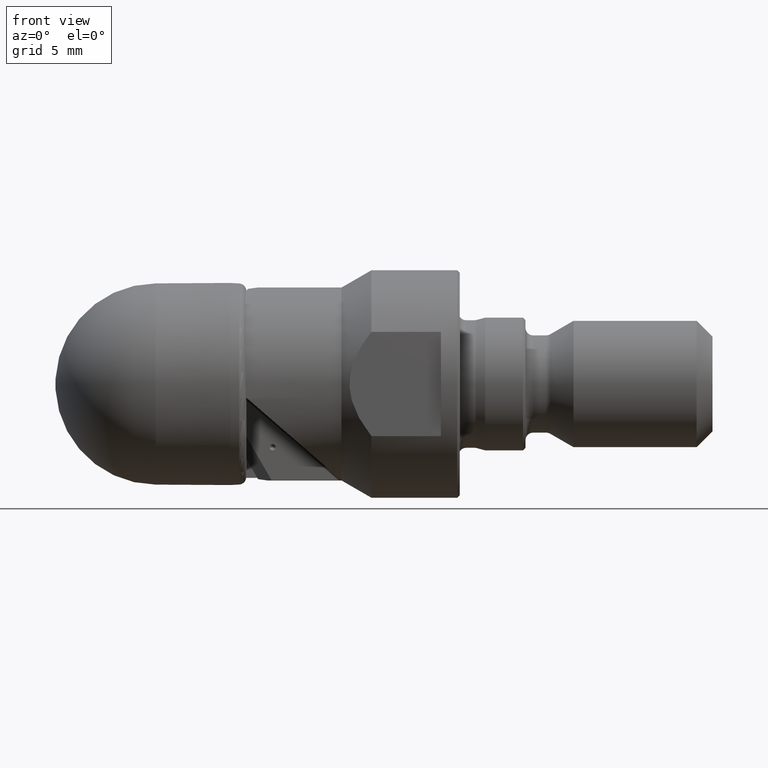
[diagram: clean part render]
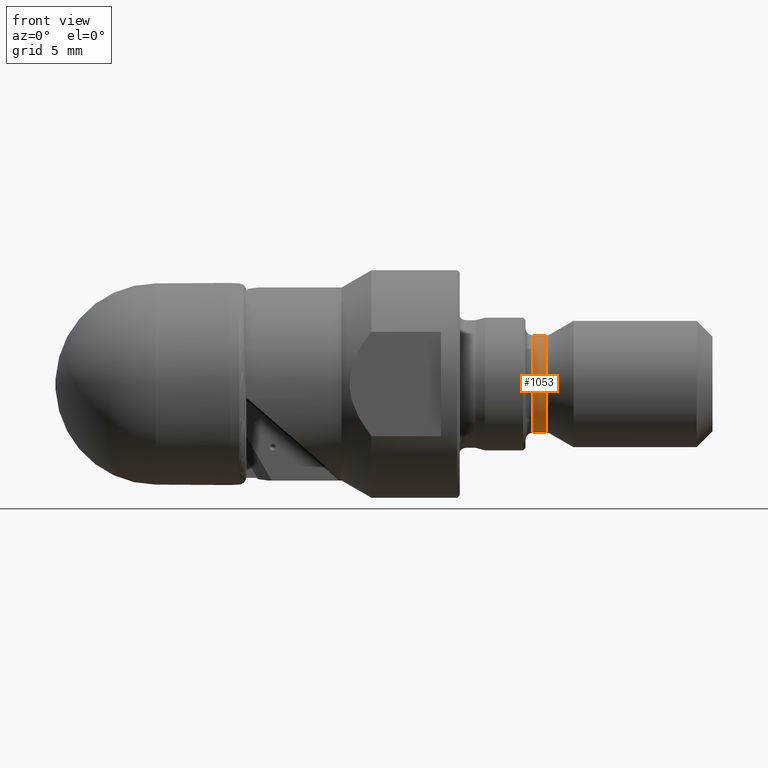
[diagram: same view with one face highlighted and labeled with its STEP entity id]
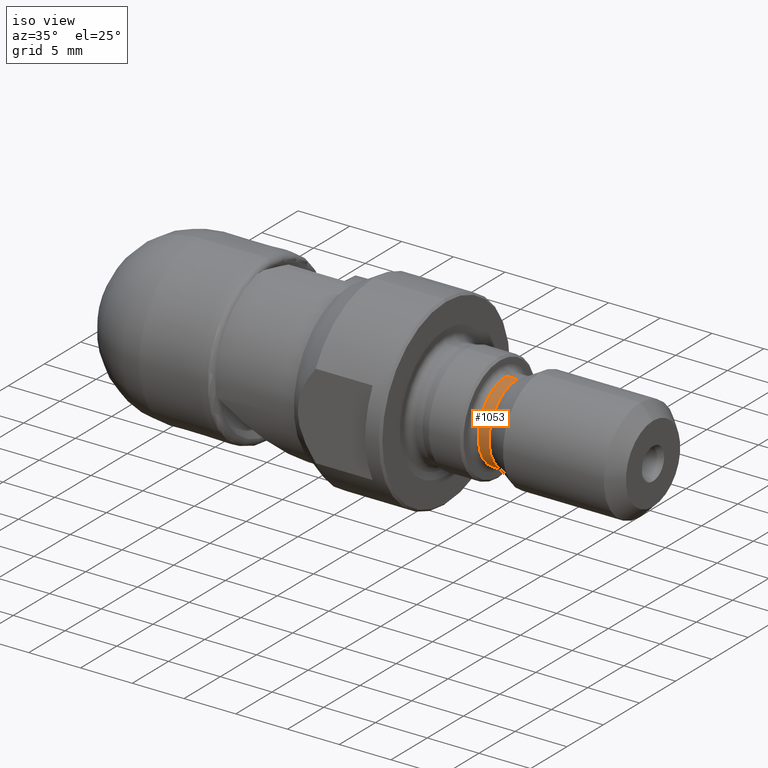
[diagram: same view with one face highlighted and labeled with its STEP entity id]
A machine part, front view. The second image highlights one B-rep face of the part: STEP entity #1053.
A second angle (iso view) of the same face is appended — the face is thin or edge-on in the first view.
In plain terms, the highlighted cylindrical surface (partial cylindrical patch) has radius 3.85 mm, axis along (-1, 0, 0).
Its self-contained STEP definition (entity closure, byte-faithful):
#37 = EDGE_CURVE ( 'NONE', #3663, #3603, #2742, .T. ) ;
#109 = ORIENTED_EDGE ( 'NONE', *, *, #256, .F. ) ;
#125 = ORIENTED_EDGE ( 'NONE', *, *, #897, .F. ) ;
#139 = DIRECTION ( 'NONE',  ( 0.0000000000000000000, 0.0000000000000000000, 1.000000000000000000 ) ) ;
#256 = EDGE_CURVE ( 'NONE', #3637, #3603, #1562, .T. ) ;
#413 = DIRECTION ( 'NONE',  ( -1.000000000000000000, 0.0000000000000000000, 0.0000000000000000000 ) ) ;
#682 = DIRECTION ( 'NONE',  ( -1.000000000000000000, 0.0000000000000000000, 0.0000000000000000000 ) ) ;
#744 = ORIENTED_EDGE ( 'NONE', *, *, #2808, .T. ) ;
#824 = CARTESIAN_POINT ( 'NONE',  ( -4.762142644779060241, 0.0000000000000000000, 3.850000000000000533 ) ) ;
#831 = CARTESIAN_POINT ( 'NONE',  ( 38.11688200000000393, 0.0000000000000000000, 3.850000000000000089 ) ) ;
#897 = EDGE_CURVE ( 'NONE', #2232, #3637, #3734, .T. ) ;
#1053 = ADVANCED_FACE ( 'NONE', ( #3095 ), #1522, .T. ) ;
#1057 = AXIS2_PLACEMENT_3D ( 'NONE', #2102, #3769, #2825 ) ;
#1189 = CARTESIAN_POINT ( 'NONE',  ( 39.16425405583711949, 4.714890176717311487E-16, -3.850000000000001421 ) ) ;
#1230 = DIRECTION ( 'NONE',  ( 0.0000000000000000000, 0.0000000000000000000, 1.000000000000000000 ) ) ;
#1318 = CIRCLE ( 'NONE', #1057, 3.850000000000000977 ) ;
#1398 = CARTESIAN_POINT ( 'NONE',  ( 39.16425405583711949, 0.0000000000000000000, 3.850000000000000977 ) ) ;
#1491 = VECTOR ( 'NONE', #2038, 1000.000000000000000 ) ;
#1522 = CYLINDRICAL_SURFACE ( 'NONE', #1709, 3.850000000000000533 ) ;
#1562 = CIRCLE ( 'NONE', #2925, 3.850000000000000089 ) ;
#1709 = AXIS2_PLACEMENT_3D ( 'NONE', #3645, #2760, #1230 ) ;
#2038 = DIRECTION ( 'NONE',  ( -1.000000000000000000, 0.0000000000000000000, 0.0000000000000000000 ) ) ;
#2102 = CARTESIAN_POINT ( 'NONE',  ( 39.16425405583711949, 0.0000000000000000000, 0.0000000000000000000 ) ) ;
#2130 = ORIENTED_EDGE ( 'NONE', *, *, #37, .T. ) ;
#2232 = VERTEX_POINT ( 'NONE', #1189 ) ;
#2742 = LINE ( 'NONE', #824, #1491 ) ;
#2760 = DIRECTION ( 'NONE',  ( -1.000000000000000000, 0.0000000000000000000, 0.0000000000000000000 ) ) ;
#2808 = EDGE_CURVE ( 'NONE', #2232, #3663, #1318, .T. ) ;
#2825 = DIRECTION ( 'NONE',  ( 0.0000000000000000000, 0.0000000000000000000, 1.000000000000000000 ) ) ;
#2891 = CARTESIAN_POINT ( 'NONE',  ( 38.11688200000000393, 0.0000000000000000000, 0.0000000000000000000 ) ) ;
#2925 = AXIS2_PLACEMENT_3D ( 'NONE', #2891, #413, #139 ) ;
#3095 = FACE_OUTER_BOUND ( 'NONE', #3528, .T. ) ;
#3210 = CARTESIAN_POINT ( 'NONE',  ( -4.762142644779060241, 4.714890176717310501E-16, -3.850000000000000533 ) ) ;
#3400 = VECTOR ( 'NONE', #682, 1000.000000000000000 ) ;
#3528 = EDGE_LOOP ( 'NONE', ( #125, #744, #2130, #109 ) ) ;
#3603 = VERTEX_POINT ( 'NONE', #831 ) ;
#3637 = VERTEX_POINT ( 'NONE', #3885 ) ;
#3645 = CARTESIAN_POINT ( 'NONE',  ( -4.762142644779060241, 0.0000000000000000000, 0.0000000000000000000 ) ) ;
#3663 = VERTEX_POINT ( 'NONE', #1398 ) ;
#3734 = LINE ( 'NONE', #3210, #3400 ) ;
#3769 = DIRECTION ( 'NONE',  ( -1.000000000000000000, 0.0000000000000000000, 0.0000000000000000000 ) ) ;
#3885 = CARTESIAN_POINT ( 'NONE',  ( 38.11688200000000393, 5.082284216461515156E-16, -3.850000000000000089 ) ) ;